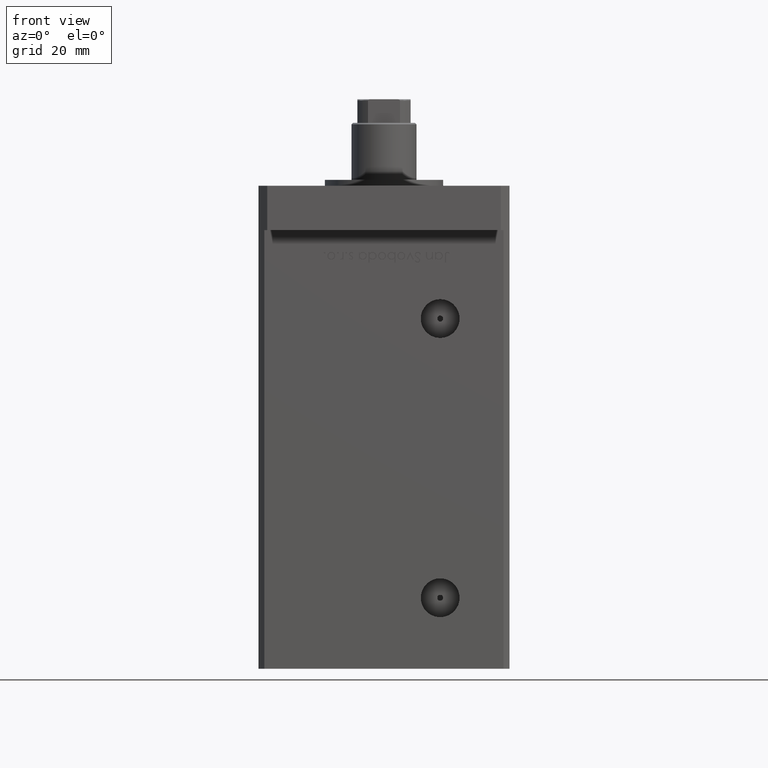
[diagram: clean part render]
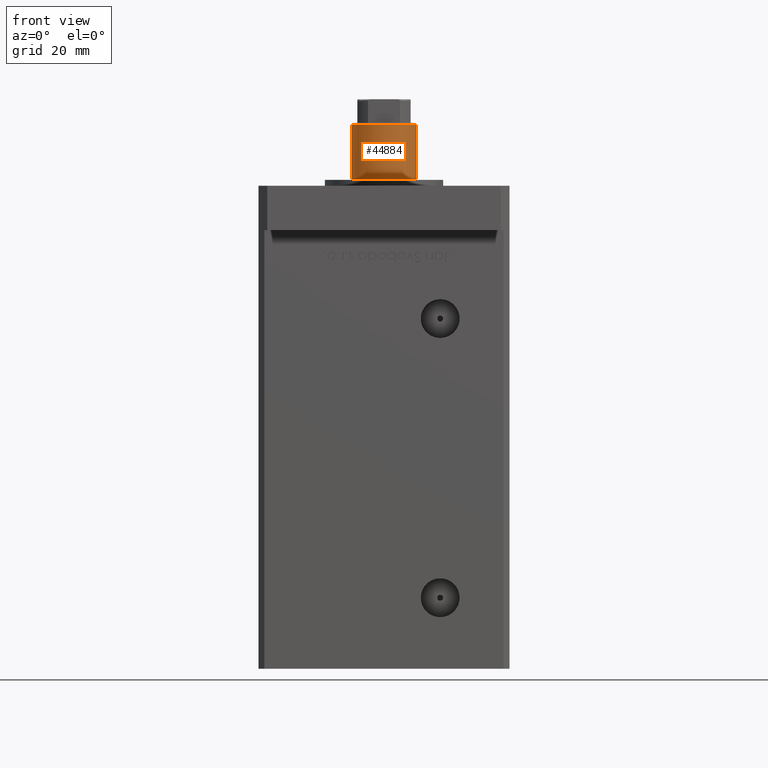
[diagram: same view with one face highlighted and labeled with its STEP entity id]
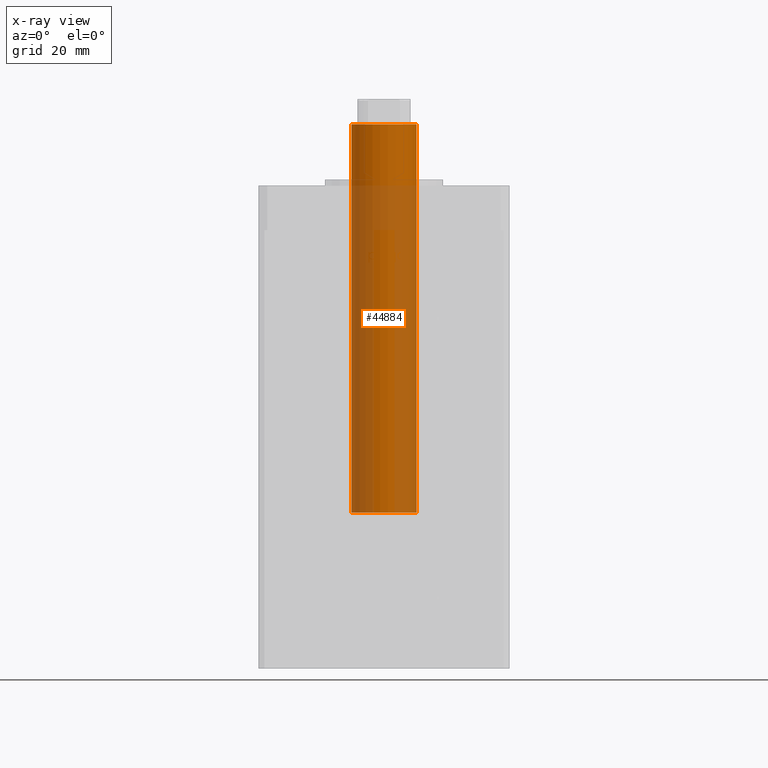
[diagram: x-ray of the same camera — body ghosted, the highlighted face saturated]
A machine part, front view. The second image highlights one B-rep face of the part: STEP entity #44884.
The next image is the same camera in x-ray: the body ghosted, the highlighted face saturated — about 61% of this face is hidden behind the body in this view.
In plain terms, the highlighted cylindrical surface (edge-blend (fillet) strip) has radius 11 mm, axis along (-0, -0, -1).
Its self-contained STEP definition (entity closure, byte-faithful):
#2798 = CARTESIAN_POINT ( 'NONE',  ( -11.00000000000000000, 0.000000000000000000, 161.5000000000000000 ) ) ;
#2984 = EDGE_CURVE ( 'NONE', #45908, #21261, #50724, .T. ) ;
#3547 = VECTOR ( 'NONE', #45868, 1000.000000000000000 ) ;
#7850 = AXIS2_PLACEMENT_3D ( 'NONE', #46247, #13438, #9095 ) ;
#9095 = DIRECTION ( 'NONE',  ( 1.000000000000000000, 0.000000000000000000, 0.000000000000000000 ) ) ;
#10113 = ORIENTED_EDGE ( 'NONE', *, *, #38960, .T. ) ;
#10683 = VERTEX_POINT ( 'NONE', #37857 ) ;
#12648 = LINE ( 'NONE', #20807, #45163 ) ;
#13438 = DIRECTION ( 'NONE',  ( 0.000000000000000000, 0.000000000000000000, -1.000000000000000000 ) ) ;
#13597 = LINE ( 'NONE', #46675, #3547 ) ;
#17847 = ORIENTED_EDGE ( 'NONE', *, *, #2984, .T. ) ;
#19224 = DIRECTION ( 'NONE',  ( -0.000000000000000000, -0.000000000000000000, -1.000000000000000000 ) ) ;
#20807 = CARTESIAN_POINT ( 'NONE',  ( 11.00000000000000000, 1.347111479062088405E-15, 162.0000000000000000 ) ) ;
#21261 = VERTEX_POINT ( 'NONE', #31280 ) ;
#23024 = CYLINDRICAL_SURFACE ( 'NONE', #24392, 11.00000000000000000 ) ;
#23276 = ORIENTED_EDGE ( 'NONE', *, *, #39159, .F. ) ;
#24392 = AXIS2_PLACEMENT_3D ( 'NONE', #26840, #19224, #30902 ) ;
#26296 = FACE_OUTER_BOUND ( 'NONE', #47715, .T. ) ;
#26514 = AXIS2_PLACEMENT_3D ( 'NONE', #29134, #34009, #45664 ) ;
#26840 = CARTESIAN_POINT ( 'NONE',  ( 0.000000000000000000, 0.000000000000000000, 162.0000000000000000 ) ) ;
#29134 = CARTESIAN_POINT ( 'NONE',  ( 0.000000000000000000, 0.000000000000000000, 30.00000000000000000 ) ) ;
#30902 = DIRECTION ( 'NONE',  ( -1.000000000000000000, 0.000000000000000000, 0.000000000000000000 ) ) ;
#31280 = CARTESIAN_POINT ( 'NONE',  ( 11.00000000000000000, 1.347111479062088405E-15, 30.00000000000000000 ) ) ;
#33812 = DIRECTION ( 'NONE',  ( -0.000000000000000000, -0.000000000000000000, -1.000000000000000000 ) ) ;
#34009 = DIRECTION ( 'NONE',  ( 0.000000000000000000, 0.000000000000000000, 1.000000000000000000 ) ) ;
#37857 = CARTESIAN_POINT ( 'NONE',  ( 11.00000000000000000, 1.347111479062088405E-15, 161.5000000000000000 ) ) ;
#38364 = ORIENTED_EDGE ( 'NONE', *, *, #42819, .T. ) ;
#38960 = EDGE_CURVE ( 'NONE', #52967, #45908, #13597, .T. ) ;
#39159 = EDGE_CURVE ( 'NONE', #10683, #21261, #12648, .T. ) ;
#42819 = EDGE_CURVE ( 'NONE', #10683, #52967, #52917, .T. ) ;
#44884 = ADVANCED_FACE ( 'NONE', ( #26296 ), #23024, .T. ) ;
#45163 = VECTOR ( 'NONE', #33812, 1000.000000000000000 ) ;
#45664 = DIRECTION ( 'NONE',  ( 1.000000000000000000, 0.000000000000000000, 0.000000000000000000 ) ) ;
#45868 = DIRECTION ( 'NONE',  ( -0.000000000000000000, -0.000000000000000000, -1.000000000000000000 ) ) ;
#45908 = VERTEX_POINT ( 'NONE', #52910 ) ;
#46247 = CARTESIAN_POINT ( 'NONE',  ( 0.000000000000000000, 0.000000000000000000, 161.5000000000000000 ) ) ;
#46675 = CARTESIAN_POINT ( 'NONE',  ( -11.00000000000000000, 0.000000000000000000, 162.0000000000000000 ) ) ;
#47715 = EDGE_LOOP ( 'NONE', ( #23276, #38364, #10113, #17847 ) ) ;
#50724 = CIRCLE ( 'NONE', #26514, 11.00000000000000000 ) ;
#52910 = CARTESIAN_POINT ( 'NONE',  ( -11.00000000000000000, 0.000000000000000000, 30.00000000000000000 ) ) ;
#52917 = CIRCLE ( 'NONE', #7850, 11.00000000000000000 ) ;
#52967 = VERTEX_POINT ( 'NONE', #2798 ) ;